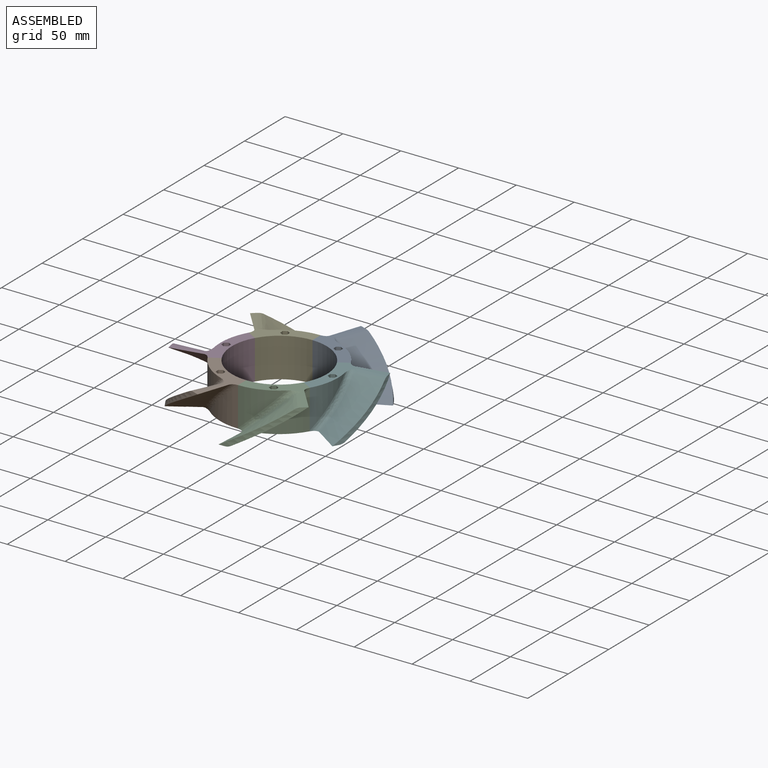
[diagram: assembled view]
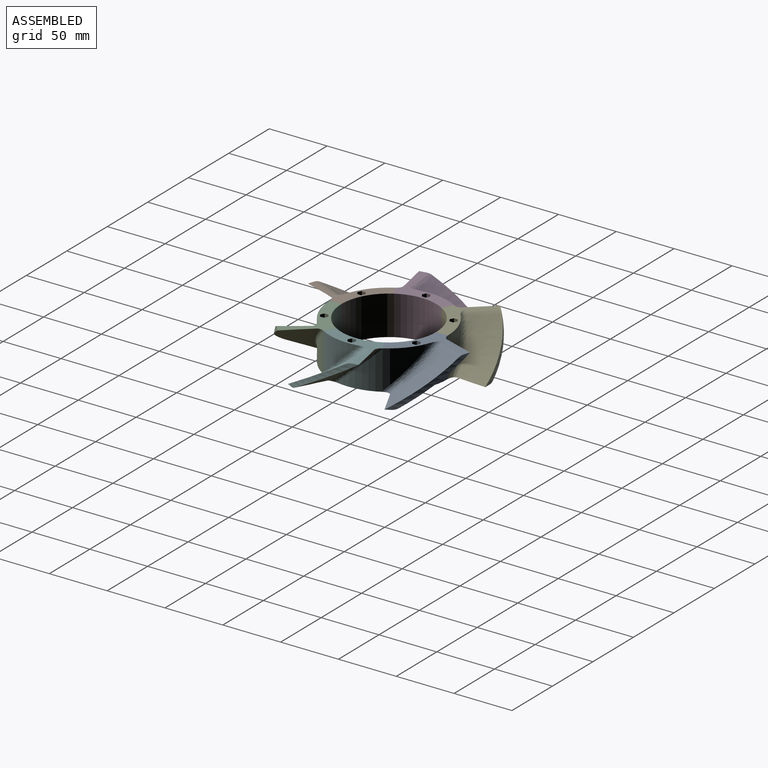
[diagram: assembled view, second angle]
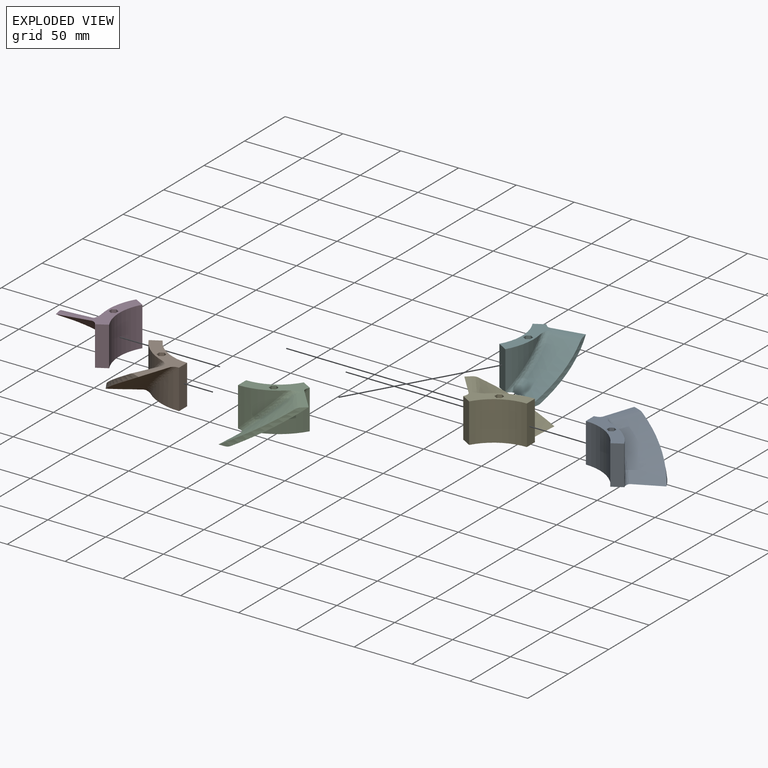
[diagram: exploded view]
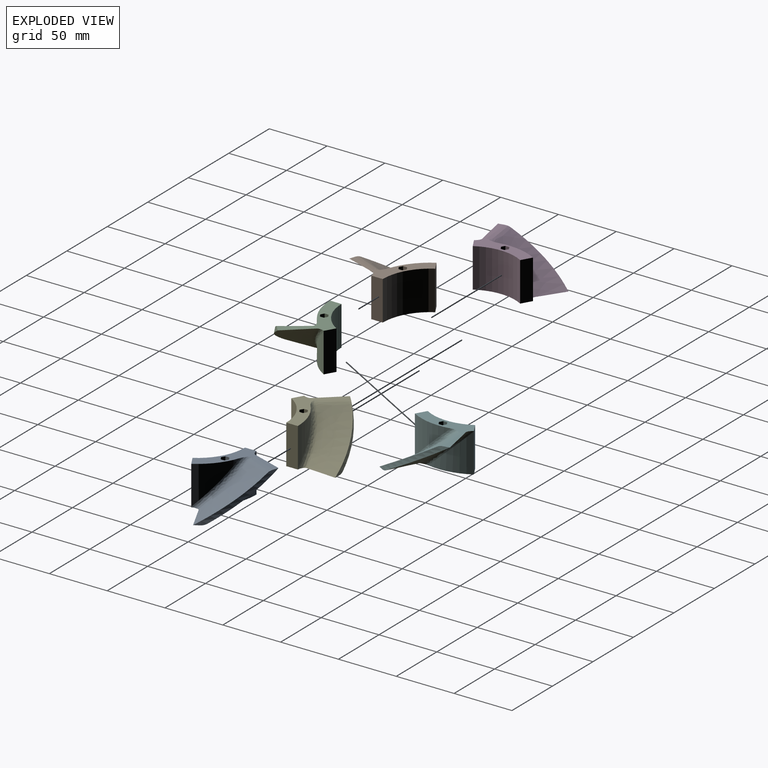
[diagram: exploded view, second angle]
ASSEMBLY  parts=6 mates=5
PART A: 31 faces, bbox 73.2x66.9x47.4 mm
  f0: cylinder r=2.25mm len=4.5mm, axis (0,0,1), area 56.5mm2, adj f17,f24
  f1: plane 61.02x45.09mm, normal (0,0,-1), area 583.1mm2, adj f3,f4,f6,f7,f8,f10,f18,f19
  f2: plane 62.86x36.25mm, normal (0,0,1), area 582.8mm2, adj f4,f5,f6,f7,f8,f9,f11,f12
  f3: cylinder r=51mm len=33.72mm, axis (0,0,-1), area 616mm2, adj f1,f6,f27
  f4: plane 34x10.02mm, normal (1,0,0), area 340mm2, adj f1,f2,f5,f7,f29
  f5: cylinder r=51mm len=33.5mm, axis (0,0,-1), area 608.4mm2, adj f2,f4,f29
  f6: plane 34x8.67mm, normal (-0.5,-0.87,0), area 340mm2, adj f1,f2,f3,f7,f27
  f7: cylinder r=41mm len=35.51mm, axis (0,0,-1), area 1459.8mm2, adj f1,f2,f4,f6
  f8: bspline ~58.33x34mm, area 272.3mm2, adj f1,f2,f9,f10,f25,f26
  f9: bspline ~57.08x56.82mm, area 1537.4mm2, adj f2,f8,f26,f27
  f10: bspline ~59.58x51.85mm, area 1435.5mm2, adj f1,f8,f25,f29
  f11: plane 25x3mm, normal (0.5,-0.87,0), area 86.6mm2, adj f2,f12,f16,f17
  f12: plane 25x3.46mm, normal (1,0,0), area 86.6mm2, adj f2,f11,f13,f17
  f13: plane 25x3mm, normal (0.5,0.87,0), area 86.6mm2, adj f2,f12,f14,f17
  f14: plane 25x3mm, normal (-0.5,0.87,0), area 86.6mm2, adj f2,f13,f15,f17
  f15: plane 25x3.46mm, normal (-1,0,0), area 86.6mm2, adj f2,f14,f16,f17
  f16: plane 25x3mm, normal (-0.5,-0.87,0), area 86.6mm2, adj f2,f11,f15,f17
  f17: plane 6.93x6mm, normal (0,0,1), area 15.3mm2, adj f0,f11,f12,f13,f14,f15,f16
  f18: plane 5x3.46mm, normal (1,0,0), area 17.3mm2, adj f1,f19,f23,f24
  f19: plane 5x3mm, normal (0.5,-0.87,0), area 17.3mm2, adj f1,f18,f20,f24
  f20: plane 5x3mm, normal (-0.5,-0.87,0), area 17.3mm2, adj f1,f19,f21,f24
  f21: plane 5x3.46mm, normal (-1,0,0), area 17.3mm2, adj f1,f20,f22,f24
  f22: plane 5x3mm, normal (-0.5,0.87,0), area 17.3mm2, adj f1,f21,f23,f24
  f23: plane 5x3mm, normal (0.5,0.87,0), area 17.3mm2, adj f1,f18,f22,f24
  f24: plane 6.93x6mm, normal (0,0,-1), area 15.3mm2, adj f0,f18,f19,f20,f21,f22,f23
  f25: bspline ~34.59x28.31mm, area 160.8mm2, adj f2,f8,f10,f30
  f26: bspline ~35.91x6.75mm, area 165.9mm2, adj f1,f8,f9,f28
  f27: bspline ~40.9x34.33mm, area 271.7mm2, adj f1,f2,f3,f6,f9,f28
  f28: bspline ~10.67x7.31mm, area 19.9mm2, adj f1,f26,f27
  f29: bspline ~45.07x44.24mm, area 322mm2, adj f1,f2,f4,f5,f10,f30
  f30: bspline ~10.31x9.12mm, area 21.4mm2, adj f2,f25,f29
PART B: 31 faces, bbox 73.2x66.9x47.4 mm
  f0: cylinder r=2.25mm len=4.5mm, axis (0,0,1), area 56.5mm2, adj f17,f24
  f1: plane 61.02x45.09mm, normal (0,0,-1), area 583.1mm2, adj f3,f4,f6,f7,f8,f10,f18,f19
  f2: plane 62.86x36.25mm, normal (0,0,1), area 582.8mm2, adj f4,f5,f6,f7,f8,f9,f11,f12
  f3: cylinder r=51mm len=33.72mm, axis (0,0,-1), area 616mm2, adj f1,f6,f27
  f4: plane 34x10.02mm, normal (1,0,0), area 340mm2, adj f1,f2,f5,f7,f29
  f5: cylinder r=51mm len=33.5mm, axis (0,0,-1), area 608.4mm2, adj f2,f4,f29
  f6: plane 34x8.67mm, normal (-0.5,-0.87,0), area 340mm2, adj f1,f2,f3,f7,f27
  f7: cylinder r=41mm len=35.51mm, axis (0,0,-1), area 1459.8mm2, adj f1,f2,f4,f6
  f8: bspline ~58.33x34mm, area 272.3mm2, adj f1,f2,f9,f10,f25,f26
  f9: bspline ~57.08x56.82mm, area 1537.4mm2, adj f2,f8,f26,f27
  f10: bspline ~59.58x51.85mm, area 1435.5mm2, adj f1,f8,f25,f29
  f11: plane 5x3mm, normal (0.5,-0.87,0), area 17.3mm2, adj f2,f12,f16,f17
  f12: plane 5x3.46mm, normal (1,0,0), area 17.3mm2, adj f2,f11,f13,f17
  f13: plane 5x3mm, normal (0.5,0.87,0), area 17.3mm2, adj f2,f12,f14,f17
  f14: plane 5x3mm, normal (-0.5,0.87,0), area 17.3mm2, adj f2,f13,f15,f17
  f15: plane 5x3.46mm, normal (-1,0,0), area 17.3mm2, adj f2,f14,f16,f17
  f16: plane 5x3mm, normal (-0.5,-0.87,0), area 17.3mm2, adj f2,f11,f15,f17
  f17: plane 6.93x6mm, normal (0,0,1), area 15.3mm2, adj f0,f11,f12,f13,f14,f15,f16
  f18: plane 25x3.46mm, normal (1,0,0), area 86.6mm2, adj f1,f19,f23,f24
  f19: plane 25x3mm, normal (0.5,-0.87,0), area 86.6mm2, adj f1,f18,f20,f24
  f20: plane 25x3mm, normal (-0.5,-0.87,0), area 86.6mm2, adj f1,f19,f21,f24
  f21: plane 25x3.46mm, normal (-1,0,0), area 86.6mm2, adj f1,f20,f22,f24
  f22: plane 25x3mm, normal (-0.5,0.87,0), area 86.6mm2, adj f1,f21,f23,f24
  f23: plane 25x3mm, normal (0.5,0.87,0), area 86.6mm2, adj f1,f18,f22,f24
  f24: plane 6.93x6mm, normal (0,0,-1), area 15.3mm2, adj f0,f18,f19,f20,f21,f22,f23
  f25: bspline ~34.59x28.31mm, area 160.8mm2, adj f2,f8,f10,f30
  f26: bspline ~35.91x6.75mm, area 165.9mm2, adj f1,f8,f9,f28
  f27: bspline ~40.9x34.33mm, area 271.7mm2, adj f1,f2,f3,f6,f9,f28
  f28: bspline ~10.67x7.31mm, area 19.9mm2, adj f1,f26,f27
  f29: bspline ~45.07x44.24mm, area 322mm2, adj f1,f2,f4,f5,f10,f30
  f30: bspline ~10.31x9.12mm, area 21.4mm2, adj f2,f25,f29
PART C: same geometry as A
PART D: same geometry as A
PART E: same geometry as B
PART F: same geometry as B
PLACE A rot(axis=(0,0,-1),60deg) t=(-23.02,-52.56,27.1)mm
PLACE B rot(axis=(0,0,1),120deg) t=(-23.02,-52.56,27.1)mm
PLACE C rot(axis=(0,0,1),180deg) t=(-23.02,-52.56,27.1)mm
PLACE D rot(axis=(0,0,1),60deg) t=(-23.02,-52.56,27.1)mm
PLACE E t=(-23.02,-52.56,27.1)mm
PLACE F rot(axis=(0,0,-1),120deg) t=(-23.02,-52.56,27.1)mm
MATE planar B.f4 <-> D.f6  axis (-0.5,0.87,0) through (-62.86,-75.56,44.1)mm
MATE planar C.f4 <-> B.f6  axis (-1,0,0) through (-23.02,-98.56,44.1)mm
MATE planar A.f6 <-> E.f4  axis (-1,0,0) through (-23.02,-6.56,44.1)mm
MATE planar D.f4 <-> E.f6  axis (0.5,0.87,0) through (-62.86,-29.56,44.1)mm
MATE planar F.f4 <-> C.f6  axis (-0.5,-0.87,0) through (16.82,-75.56,44.1)mm
